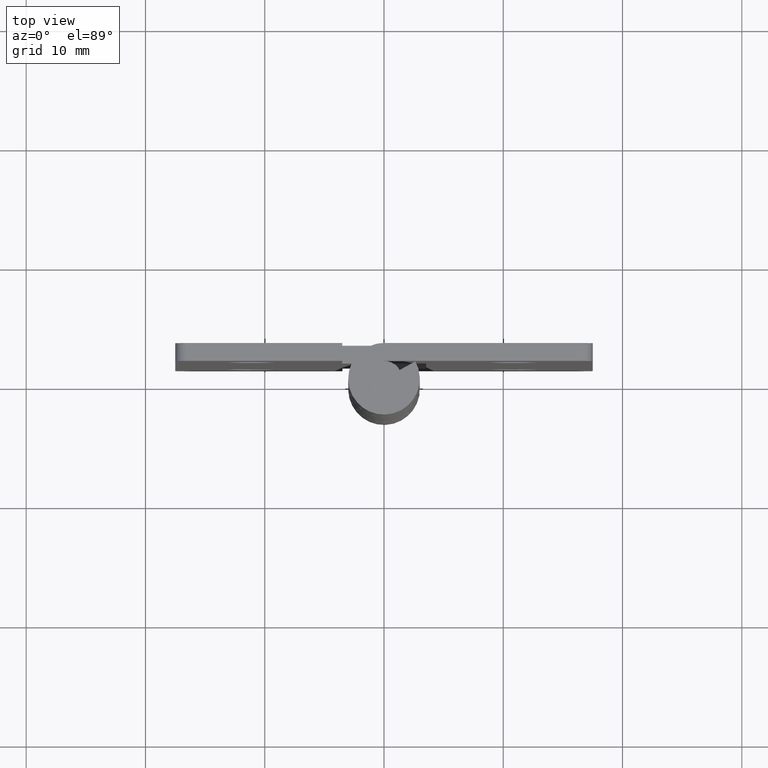
[diagram: clean part render]
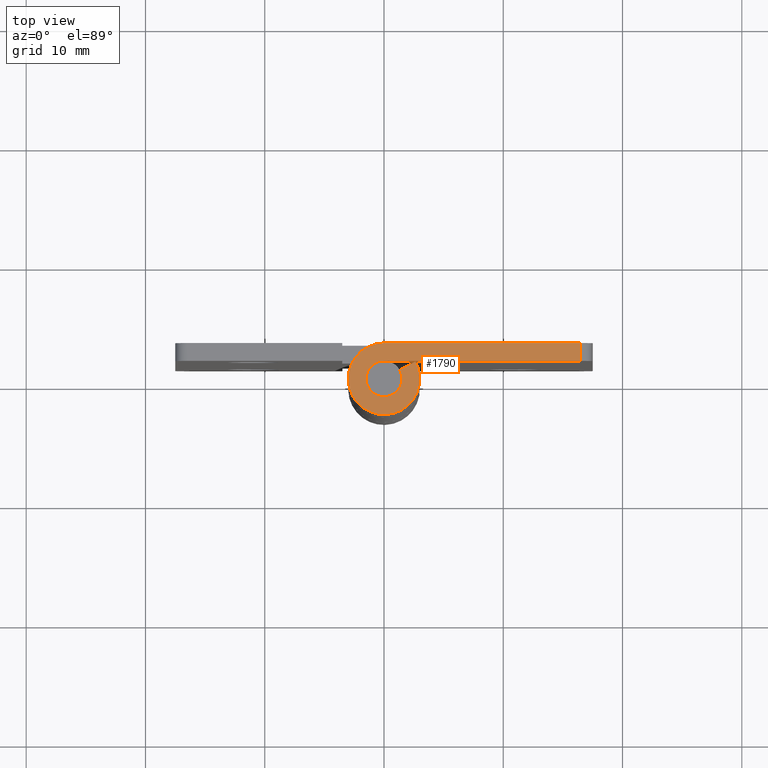
[diagram: same view with one face highlighted and labeled with its STEP entity id]
A machine part, top view. The second image highlights one B-rep face of the part: STEP entity #1790.
In plain terms, the highlighted face is a freeform B-spline surface patch.
Its self-contained STEP definition (entity closure, byte-faithful):
#1367=CARTESIAN_POINT('',(16.500000000000000,3.0,50.000008000000001));
#1368=VERTEX_POINT('',#1367);
#1384=CARTESIAN_POINT('',(16.500000000000000,1.500000000000000,50.000008000000001));
#1385=VERTEX_POINT('',#1384);
#1386=CARTESIAN_POINT('',(16.500000000000000,1.500000000000000,50.000008000000001));
#1387=CARTESIAN_POINT('',(16.500000000000000,3.0,50.000008000000001));
#1388=QUASI_UNIFORM_CURVE('',1,(#1386,#1387),.UNSPECIFIED.,.F.,.U.);
#1389=EDGE_CURVE('',#1385,#1368,#1388,.T.);
#1721=CARTESIAN_POINT('',(-3.973972892628288,-3.299492225269541,50.000008000000001));
#1722=CARTESIAN_POINT('',(17.474023008092619,-3.299492225269541,50.000008000000001));
#1723=CARTESIAN_POINT('',(-3.973972892628288,3.299690265240231,50.000008000000001));
#1724=CARTESIAN_POINT('',(17.474023008092619,3.299690265240231,50.000008000000001));
#1725=B_SPLINE_SURFACE_WITH_KNOTS('',1,1,((#1721,#1723),(#1722,#1724)),.UNSPECIFIED.,.F.,.F.,.U.,(2,2),(2,2),(0.0,21.447995900720908),(0.0,6.599182490509772),.UNSPECIFIED.);
#1726=CARTESIAN_POINT('',(0.0,1.500000000000000,50.000008000000001));
#1727=VERTEX_POINT('',#1726);
#1728=CARTESIAN_POINT('',(16.500000000000000,1.500000000000000,50.000008000000001));
#1729=CARTESIAN_POINT('',(0.0,1.500000000000000,50.000008000000001));
#1730=QUASI_UNIFORM_CURVE('',1,(#1728,#1729),.UNSPECIFIED.,.F.,.U.);
#1731=EDGE_CURVE('',#1385,#1727,#1730,.T.);
#1732=ORIENTED_EDGE('',*,*,#1731,.F.);
#1733=ORIENTED_EDGE('',*,*,#1389,.T.);
#1734=CARTESIAN_POINT('',(-5.510729E-016,3.0,50.000008000000001));
#1735=VERTEX_POINT('',#1734);
#1736=CARTESIAN_POINT('',(-5.510729E-016,3.0,50.000008000000001));
#1737=CARTESIAN_POINT('',(16.500000000000000,3.0,50.000008000000001));
#1738=QUASI_UNIFORM_CURVE('',1,(#1736,#1737),.UNSPECIFIED.,.F.,.U.);
#1739=EDGE_CURVE('',#1735,#1368,#1738,.T.);
#1740=ORIENTED_EDGE('',*,*,#1739,.F.);
#1741=CARTESIAN_POINT('',(2.626309197333780,1.450000000000000,50.000008000000001));
#1742=VERTEX_POINT('',#1741);
#1743=CARTESIAN_POINT('',(2.626309197333780,1.450000000000000,50.000008000000001));
#1744=CARTESIAN_POINT('',(3.733431584505770,-0.555272902071675,50.000007999999994));
#1745=CARTESIAN_POINT('',(2.090650590886091,-2.151552952364324,50.000008000000001));
#1746=CARTESIAN_POINT('',(0.447869597266413,-3.747833002656972,50.000007999999994));
#1747=CARTESIAN_POINT('',(-1.524795068197689,-2.583602136552764,50.000008000000001));
#1748=CARTESIAN_POINT('',(-3.497459733661792,-1.419371270448555,50.000007999999994));
#1749=CARTESIAN_POINT('',(-2.894028888043301,0.790314364775722,50.000008000000001));
#1750=CARTESIAN_POINT('',(-2.290598042424809,3.000000000000000,50.000007999999994));
#1751=CARTESIAN_POINT('',(0.0,3.0,50.000008000000001));
#1759=(BOUNDED_CURVE()B_SPLINE_CURVE(2,(#1743,#1744,#1745,#1746,#1747,#1748,#1749,#1750,#1751),.UNSPECIFIED.,.F.,.U.)B_SPLINE_CURVE_WITH_KNOTS((3,2,2,2,3),(0.0,0.250000000000000,0.500000000000000,0.750000000000000,1.0),.UNSPECIFIED.)CURVE()GEOMETRIC_REPRESENTATION_ITEM()RATIONAL_B_SPLINE_CURVE((1.0,0.794807562115481,1.0,0.794807562115481,1.0,0.794807562115481,1.0,0.794807562115481,1.0))REPRESENTATION_ITEM(''));
#1760=EDGE_CURVE('',#1742,#1735,#1759,.T.);
#1761=ORIENTED_EDGE('',*,*,#1760,.F.);
#1762=CARTESIAN_POINT('',(1.313154598666890,0.725000000000000,50.000008000000001));
#1763=VERTEX_POINT('',#1762);
#1764=CARTESIAN_POINT('',(1.313154598666890,0.725000000000000,50.000008000000001));
#1765=CARTESIAN_POINT('',(2.626309197333780,1.450000000000000,50.000008000000001));
#1766=QUASI_UNIFORM_CURVE('',1,(#1764,#1765),.UNSPECIFIED.,.F.,.U.);
#1767=EDGE_CURVE('',#1763,#1742,#1766,.T.);
#1768=ORIENTED_EDGE('',*,*,#1767,.F.);
#1769=CARTESIAN_POINT('',(1.313154598666890,0.725000000000000,50.000008000000001));
#1770=CARTESIAN_POINT('',(1.866715792252885,-0.277636451035838,50.000007999999994));
#1771=CARTESIAN_POINT('',(1.045325295443045,-1.075776476182162,50.000008000000001));
#1772=CARTESIAN_POINT('',(0.223934798633207,-1.873916501328486,50.000007999999994));
#1773=CARTESIAN_POINT('',(-0.762397534098844,-1.291801068276382,50.000008000000001));
#1774=CARTESIAN_POINT('',(-1.748729866830896,-0.709685635224277,50.000007999999994));
#1775=CARTESIAN_POINT('',(-1.447014444021651,0.395157182387861,50.000008000000001));
#1776=CARTESIAN_POINT('',(-1.145299021212405,1.500000000000000,50.000007999999994));
#1777=CARTESIAN_POINT('',(0.0,1.500000000000000,50.000008000000001));
#1785=(BOUNDED_CURVE()B_SPLINE_CURVE(2,(#1769,#1770,#1771,#1772,#1773,#1774,#1775,#1776,#1777),.UNSPECIFIED.,.F.,.U.)B_SPLINE_CURVE_WITH_KNOTS((3,2,2,2,3),(0.0,0.250000000000000,0.500000000000000,0.750000000000000,1.0),.UNSPECIFIED.)CURVE()GEOMETRIC_REPRESENTATION_ITEM()RATIONAL_B_SPLINE_CURVE((1.0,0.794807562115481,1.0,0.794807562115481,1.0,0.794807562115481,1.0,0.794807562115481,1.0))REPRESENTATION_ITEM(''));
#1786=EDGE_CURVE('',#1763,#1727,#1785,.T.);
#1787=ORIENTED_EDGE('',*,*,#1786,.T.);
#1788=EDGE_LOOP('',(#1732,#1733,#1740,#1761,#1768,#1787));
#1789=FACE_OUTER_BOUND('',#1788,.T.);
#1790=ADVANCED_FACE('',(#1789),#1725,.T.);